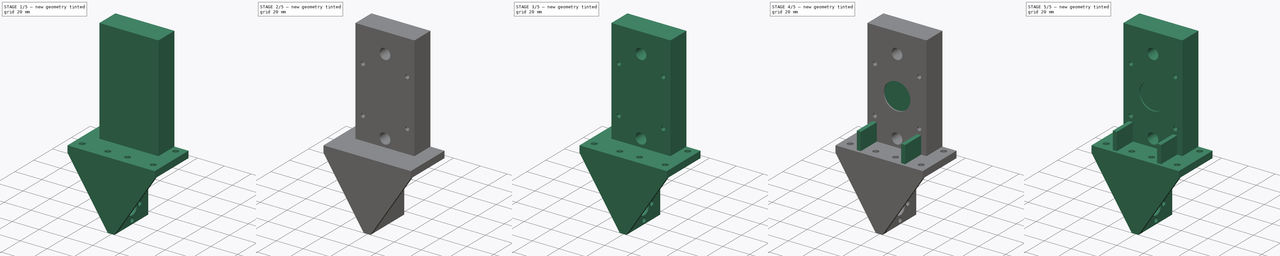
[diagram: build sequence overview — one tinted view per stage of 5, left to right]
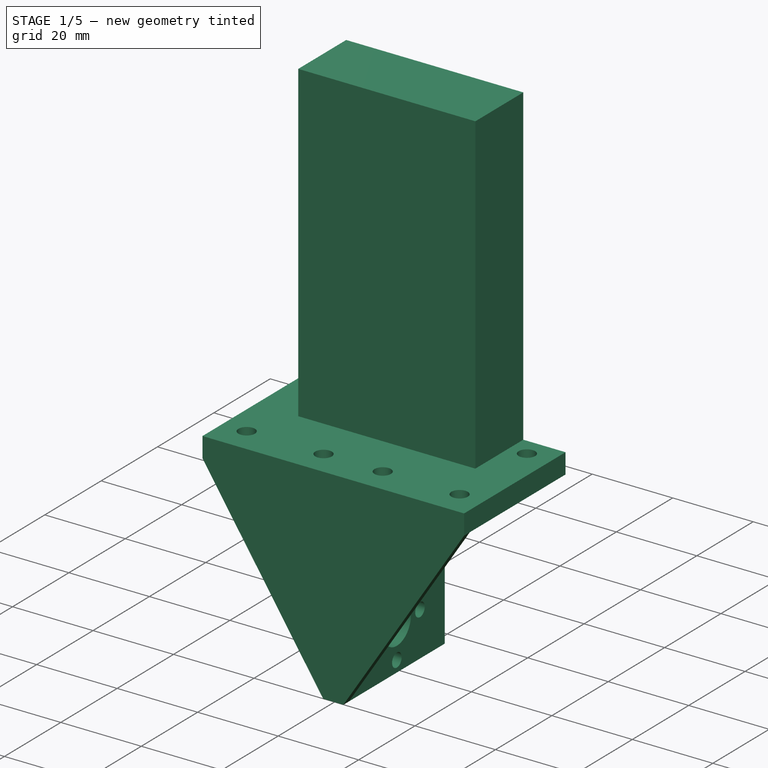
[diagram: stage 1 of 5 — iso view after this stage's code; geometry added in this stage tinted green]
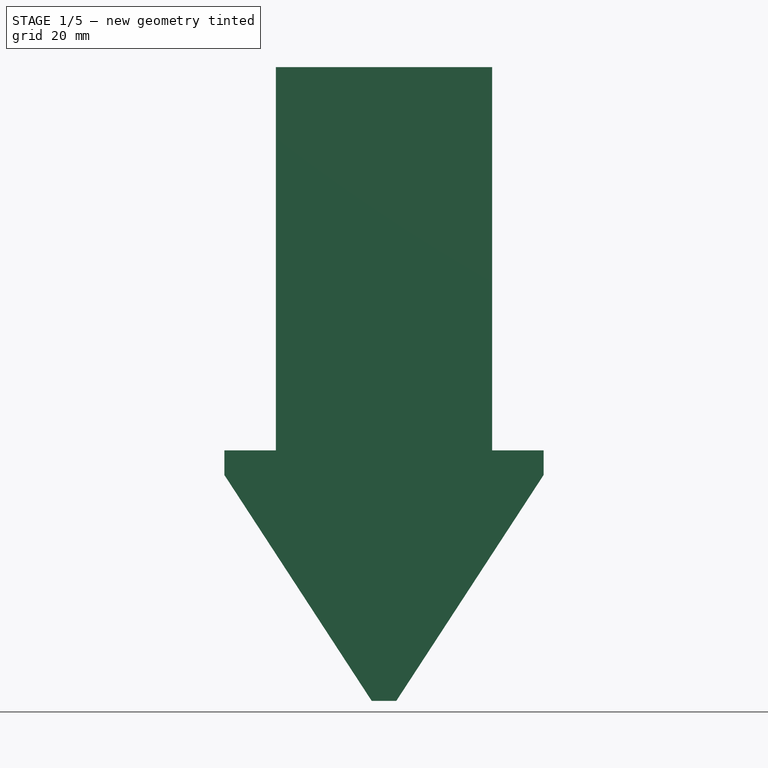
[diagram: stage 1 of 5 — front view after this stage's code; geometry added in this stage tinted green]
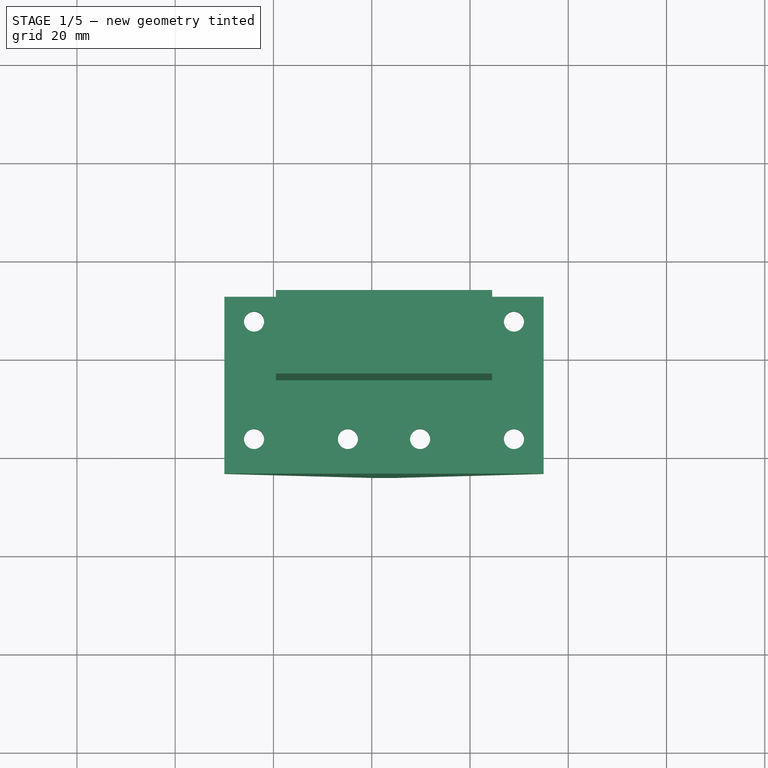
[diagram: stage 1 of 5 — top view after this stage's code; geometry added in this stage tinted green]
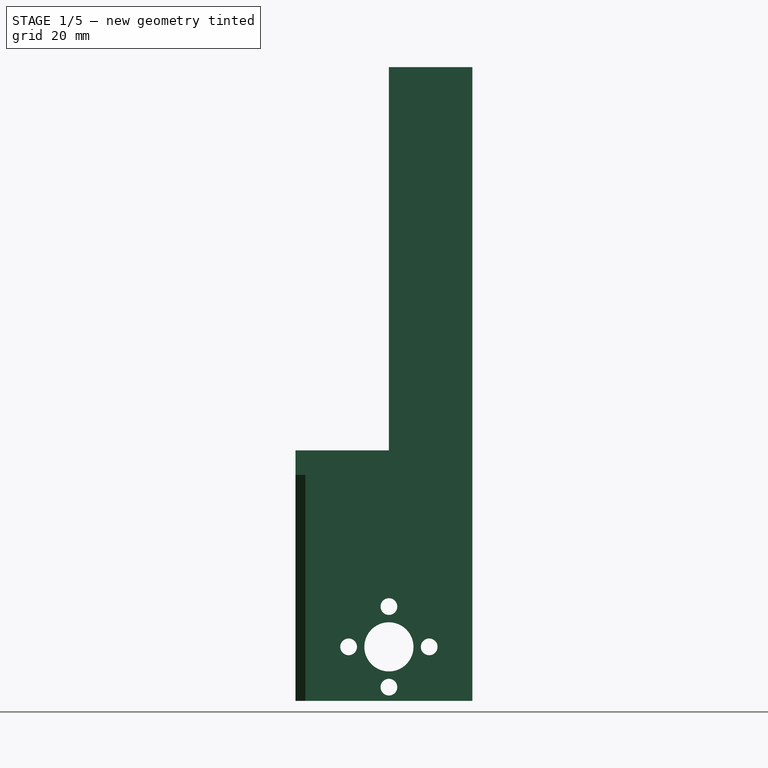
[diagram: stage 1 of 5 — right view after this stage's code; geometry added in this stage tinted green]
FCSTD DOCUMENT  (FreeCAD 0.16R6712 (Git))
Label: sujecion_x2
License: All rights reserved
LicenseURL: http://en.wikipedia.org/wiki/All_rights_reserved
objects: Sketcher::SketchObject×11, PartDesign::Pocket×7, PartDesign::Pad×4, Part::Box×3, Part::MultiFuse×3, Part::Feature×3, PartDesign::Chamfer×1, Part::Cut×1
note: 44 computed .brp shape members not serialized (recipe doc carries the construction recipe); baked Part::Feature solids carry a one-line shape summary decoded from their .brp

FEATURE [Part::Box] Box002  label="Cubo002"
  Height = 78
  Length = 44
  Placement = pos=(-19.5,15,51) rot=(0,0,1;0rad)
  Width = 17
FEATURE [Part::Feature] Pocket006001  label="Pocket007"
  shape: bbox 65 x 34 x 129 mm, 36 faces (baked)
FEATURE [Sketcher::SketchObject] Sketch009
  ExternalGeometry = -> [Pocket006001]
  Placement = pos=(0,-2,0) rot=(1,0,0;1.5708rad)
  Support = -> Pocket006001 [Face36]
  sketch-geometry (6):
    g0: LineSegment StartX=-30 StartY=51 StartZ=0 EndX=35 EndY=51 EndZ=0
    g1: LineSegment StartX=35 StartY=51 StartZ=0 EndX=35 EndY=46 EndZ=0
    g2: LineSegment StartX=35 StartY=46 StartZ=0 EndX=5 EndY=0 EndZ=0
    g3: LineSegment StartX=5 StartY=0 StartZ=0 EndX=0 EndY=0 EndZ=0
    g4: LineSegment StartX=0 StartY=0 StartZ=0 EndX=-30 EndY=46 EndZ=0
    g5: LineSegment StartX=-30 StartY=46 StartZ=0 EndX=-30 EndY=51 EndZ=0
  constraints (12):
    c: Coincident(g-3,g0)
    c: Coincident(g0,g-4)
    c: Coincident(g0,g1)
    c: Coincident(g1,g-4)
    c: Coincident(g1,g2)
    c: Coincident(g2,g-5)
    c: Coincident(g2,g3)
    c: Coincident(g3,g-1)
    c: Coincident(g3,g4)
    c: Coincident(g4,g-3)
    c: Coincident(g4,g5)
    c: Coincident(g5,g0)
FEATURE [PartDesign::Pad] Pad001002
  Length = 2
  Length2 = 100
  Sketch = -> Sketch009
  Type = 0
FEATURE [Sketcher::SketchObject] Sketch010
  Placement = pos=(0,0,0) rot=(-1,0,0;4.71239rad)
  sketch-geometry (4):
    g0: LineSegment StartX=-22.8727 StartY=131.236 StartZ=0 EndX=30.617 EndY=131.236 EndZ=0
    g1: LineSegment StartX=30.617 StartY=131.236 StartZ=0 EndX=30.617 EndY=120.688 EndZ=0
    g2: LineSegment StartX=30.617 StartY=120.688 StartZ=0 EndX=-22.8727 EndY=120.688 EndZ=0
    g3: LineSegment StartX=-22.8727 StartY=120.688 StartZ=0 EndX=-22.8727 EndY=131.236 EndZ=0
  constraints (8):
    c: Coincident(g0,g1)
    c: Coincident(g1,g2)
    c: Coincident(g2,g3)
    c: Coincident(g3,g0)
    c: Horizontal(g0)
    c: Horizontal(g2)
    c: Vertical(g1)
    c: Vertical(g3)
FEATURE [PartDesign::Pad] Pad001003
  Length = 40
  Length2 = 100
  Placement = pos=(0,0,0) rot=(-1,0,0;4.71239rad)
  Reversed = true
  Sketch = -> Sketch010
  Type = 0
FEATURE [Part::Cut] Cut
  Base = -> Pad001002
  Tool = -> Pad001003
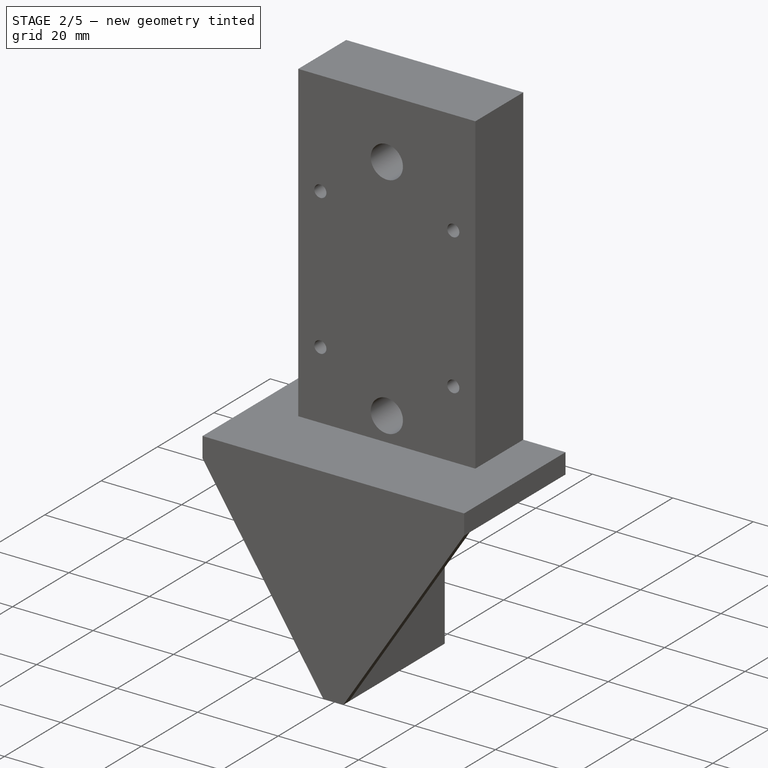
[diagram: stage 2 of 5 — iso view after this stage's code; geometry added in this stage tinted green]
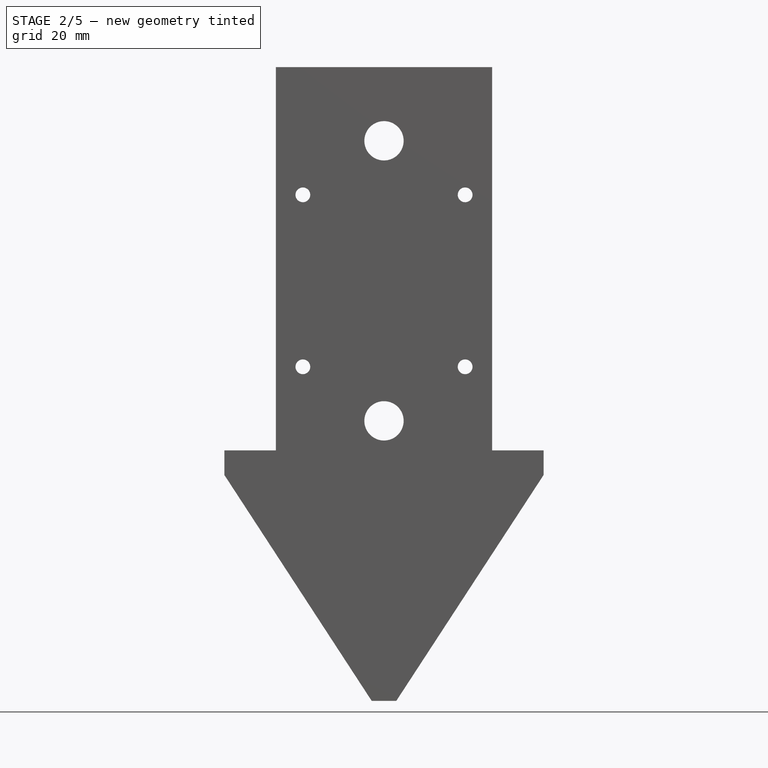
[diagram: stage 2 of 5 — front view after this stage's code; geometry added in this stage tinted green]
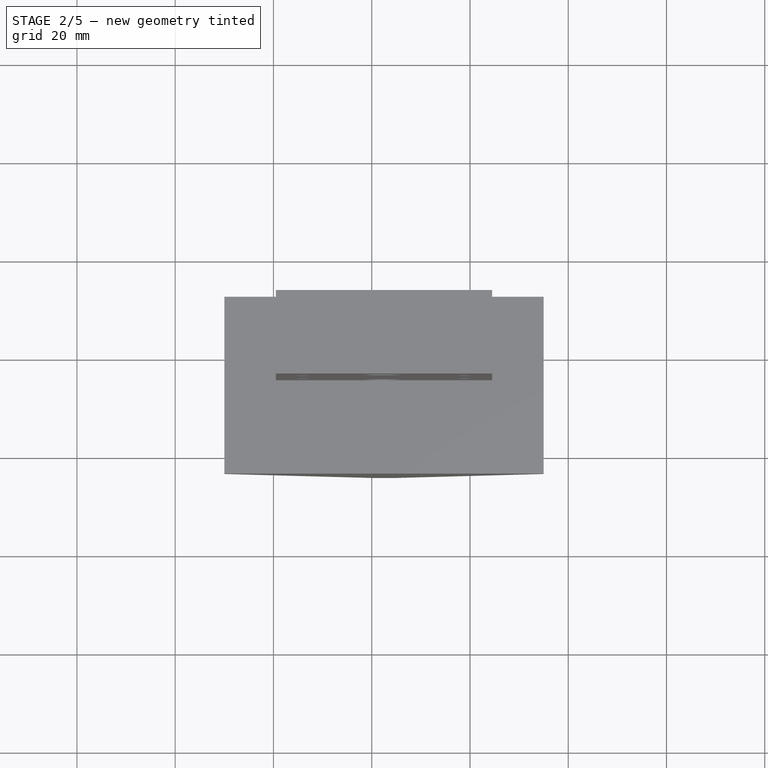
[diagram: stage 2 of 5 — top view after this stage's code; geometry added in this stage tinted green]
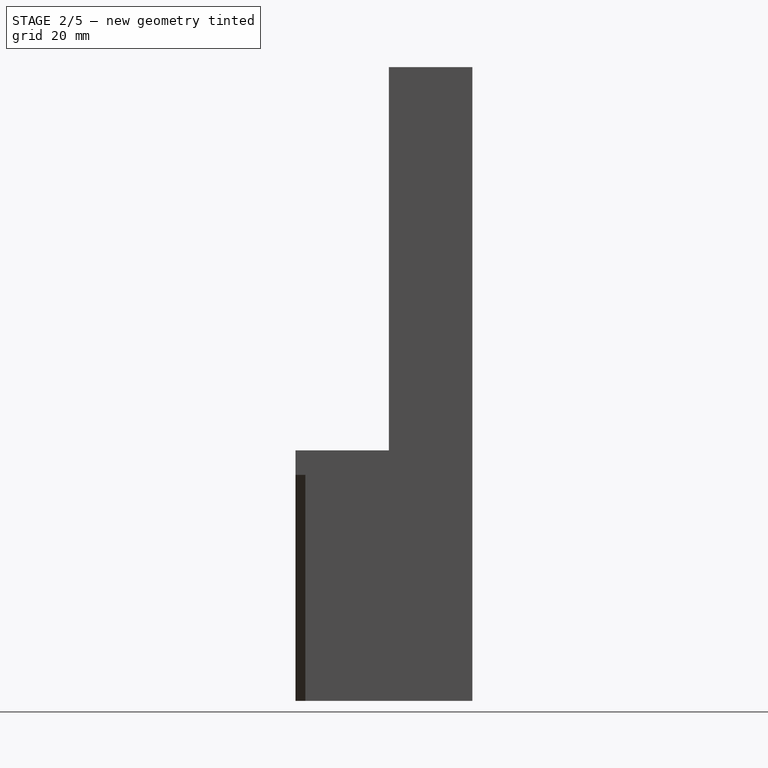
[diagram: stage 2 of 5 — right view after this stage's code; geometry added in this stage tinted green]
FEATURE [Part::Box] Box  label="Cubo"
  Height = 46
  Length = 5
  Placement = pos=(0,-2,0) rot=(0,0,1;0rad)
  Width = 34
FEATURE [Part::Box] Box001  label="Cubo001"
  Height = 5
  Length = 65
  Placement = pos=(-30,-2,46) rot=(0,0,1;0rad)
  Width = 34
FEATURE [Part::MultiFuse] Fusion
  Shapes = -> [Box,Box001]
FEATURE [Sketcher::SketchObject] Sketch003
  ExternalGeometry = -> [Box002]
  Placement = pos=(-19.5,15,51) rot=(1,0,0;1.5708rad)
  Support = -> Box002 [Face3]
  sketch-geometry (8):
    g0: Circle CenterX=22 CenterY=6 CenterZ=0 NormalX=0 NormalY=0 NormalZ=1 Radius=4
    g1: Circle CenterX=22 CenterY=63 CenterZ=0 NormalX=0 NormalY=0 NormalZ=1 Radius=4
    g2: Circle CenterX=5.48502 CenterY=17 CenterZ=0 NormalX=0 NormalY=0 NormalZ=1 Radius=1.5
    g3: LineSegment [constr] StartX=22 StartY=87.5009 StartZ=0 EndX=22 EndY=-10.6245 EndZ=0
    g4: Circle CenterX=38.515 CenterY=17 CenterZ=0 NormalX=0 NormalY=0 NormalZ=1 Radius=1.5
    g5: LineSegment [constr] StartX=-18.5189 StartY=34.5 StartZ=0 EndX=66.8827 EndY=34.5 EndZ=0
    g6: Circle CenterX=5.48502 CenterY=52 CenterZ=0 NormalX=0 NormalY=0 NormalZ=1 Radius=1.5
    g7: Circle CenterX=38.515 CenterY=52 CenterZ=0 NormalX=0 NormalY=0 NormalZ=1 Radius=1.5
  constraints (15):
    c: Radius(g0) = 4
    c: DistanceX(g-1,g0) = 22
    c: DistanceY(g-1,g0) = 6
    c: Radius(g1) = 4
    c: DistanceY(g0,g1) = 57
    c: DistanceX(g-1,g1) = 22
    c: DistanceY(g0,g2) = 11
    c: Vertical(g3)
    c: PointOnObject(g1,g3)
    c: Radius(g2) = 1.5
    c: Radius(g4) = 1.5
    c: Horizontal(g5)
    c: DistanceY(g5,g1) = 28.5
    c: Radius(g6) = 1.5
    c: Radius(g7) = 1.5
FEATURE [PartDesign::Pocket] Pocket003
  Length = 5
  Placement = pos=(-19.5,15,51) rot=(0,0,1;0rad)
  Sketch = -> Sketch003
  Type = 1
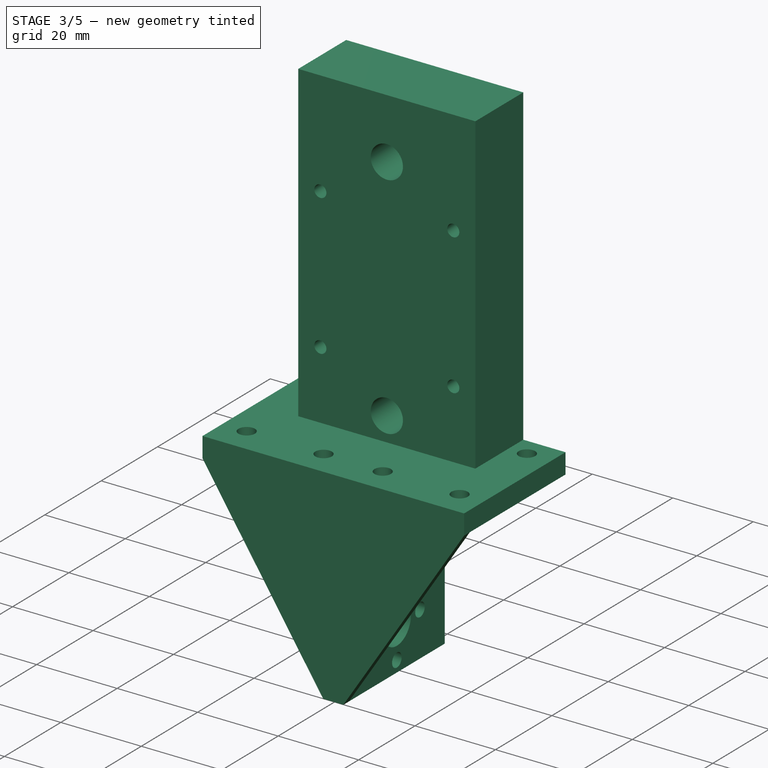
[diagram: stage 3 of 5 — iso view after this stage's code; geometry added in this stage tinted green]
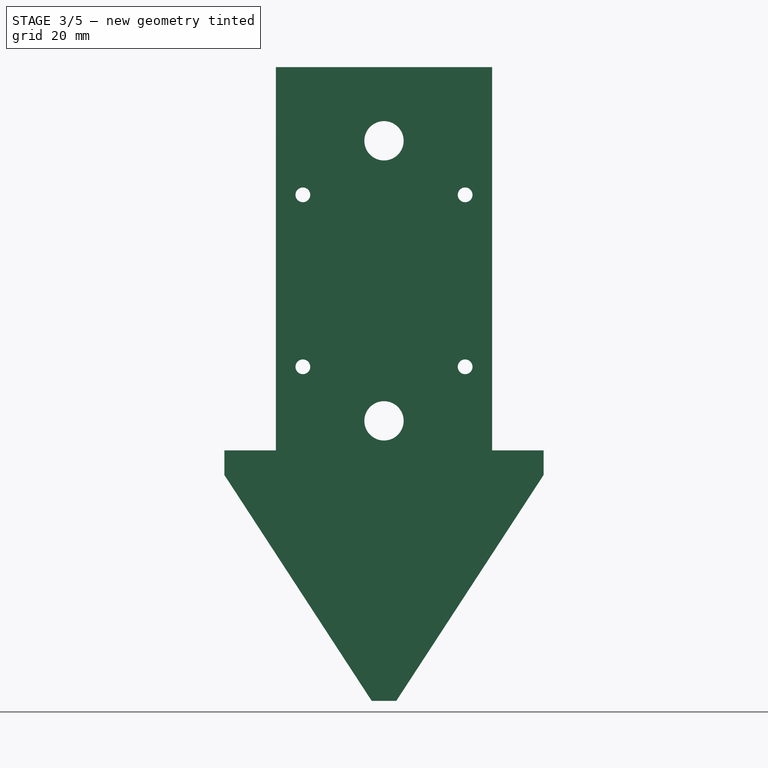
[diagram: stage 3 of 5 — front view after this stage's code; geometry added in this stage tinted green]
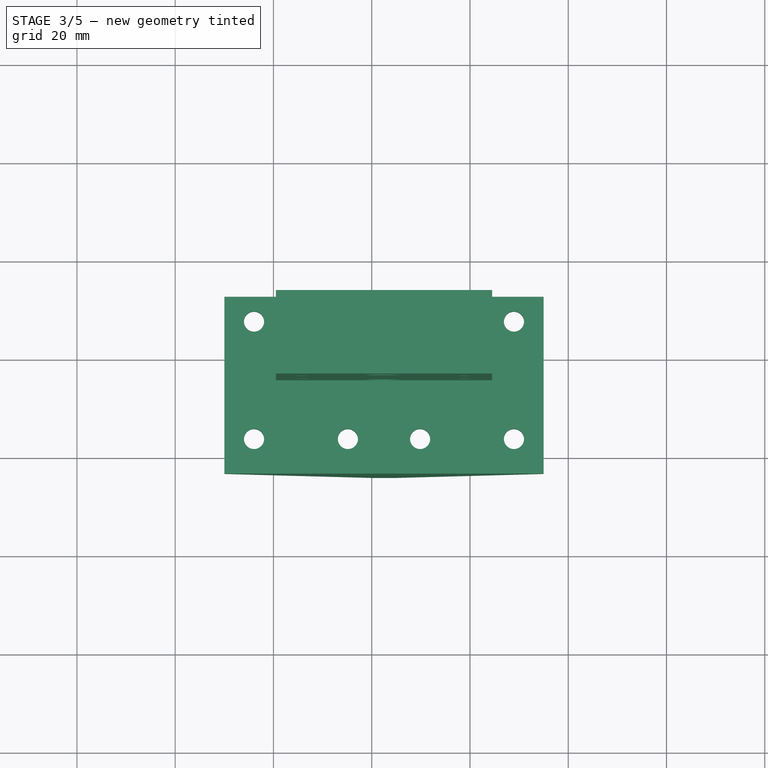
[diagram: stage 3 of 5 — top view after this stage's code; geometry added in this stage tinted green]
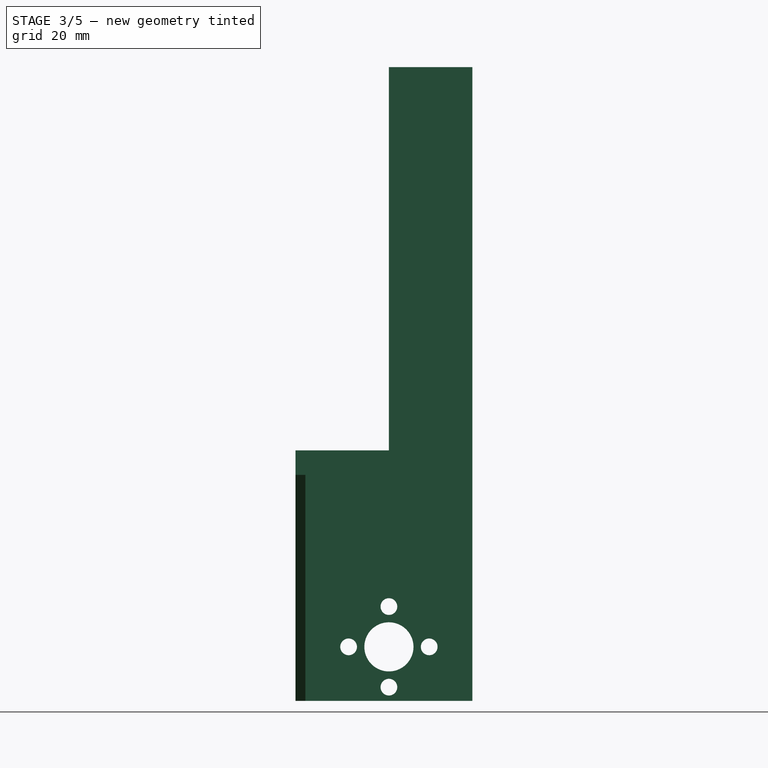
[diagram: stage 3 of 5 — right view after this stage's code; geometry added in this stage tinted green]
FEATURE [Sketcher::SketchObject] Sketch
  ExternalGeometry = -> [Fusion]
  Placement = pos=(0,0,51) rot=(0,0,1;0rad)
  Support = -> Fusion [Face11]
  sketch-geometry (11):
    g0: Circle CenterX=-36.05 CenterY=-7.05 CenterZ=0 NormalX=0 NormalY=0 NormalZ=1 Radius=2.05
    g1: Circle CenterX=28.95 CenterY=3.05 CenterZ=0 NormalX=0 NormalY=0 NormalZ=1 Radius=2.05
    g2: Circle CenterX=-55.15 CenterY=-7.05 CenterZ=0 NormalX=0 NormalY=0 NormalZ=1 Radius=2.05
    g3: Circle CenterX=9.85 CenterY=3.05 CenterZ=0 NormalX=0 NormalY=0 NormalZ=1 Radius=2.05
    g4: LineSegment [constr] StartX=2.5 StartY=34.6682 StartZ=0 EndX=2.5 EndY=-4.32857 EndZ=0
    g5: Circle CenterX=-4.85 CenterY=3.05 CenterZ=0 NormalX=0 NormalY=0 NormalZ=1 Radius=2.05
    g6: Circle CenterX=-23.95 CenterY=3.05 CenterZ=0 NormalX=0 NormalY=0 NormalZ=1 Radius=2.05
    g7: Circle CenterX=-23.95 CenterY=26.95 CenterZ=0 NormalX=0 NormalY=0 NormalZ=1 Radius=2.05
    g8: Circle CenterX=-4.85 CenterY=26.95 CenterZ=0 NormalX=0 NormalY=0 NormalZ=1 Radius=2.05
    g9: Circle CenterX=9.85 CenterY=26.95 CenterZ=0 NormalX=0 NormalY=0 NormalZ=1 Radius=2.05
    g10: Circle CenterX=28.95 CenterY=26.95 CenterZ=0 NormalX=0 NormalY=0 NormalZ=1 Radius=2.05
  constraints (17):
    c: Equal(g2,g0)
    c: Equal(g0,g1)
    c: Equal(g1,g3)
    c: DistanceX(g0,g-4) = 6.05
    c: DistanceX(g1,g-3) = 6.05
    c: DistanceY(g0,g-4) = 5.05
    c: DistanceY(g-3,g1) = 5.05
    c: DistanceY(g-3,g3) = 5.05
    c: DistanceX(g3,g1) = 19.1
    c: DistanceX(g2,g0) = 19.1
    c: DistanceY(g2,g-4) = 5.05
    c: Vertical(g4)
    c: DistanceX(g-1,g4) = 2.5
    c: Equal(g8,g7)
    c: Equal(g7,g6)
    c: Equal(g6,g5)
    c: Equal(g9,g10)
FEATURE [PartDesign::Pocket] Pocket
  Length = 5
  Sketch = -> Sketch
  Type = 0
FEATURE [Sketcher::SketchObject] Sketch001
  Placement = pos=(5,0,0) rot=(0.57735,0.57735,0.57735;2.0944rad)
  Support = -> Pocket [Face4]
  sketch-geometry (8):
    g0: Circle [constr] CenterX=15 CenterY=11 CenterZ=0 NormalX=0 NormalY=0 NormalZ=1 Radius=11
    g1: Circle CenterX=15 CenterY=11 CenterZ=0 NormalX=0 NormalY=0 NormalZ=1 Radius=5
    g2: LineSegment [constr] StartX=15 StartY=27.86 StartZ=0 EndX=15 EndY=-6.05381 EndZ=0
    g3: LineSegment [constr] StartX=39.7618 StartY=11 StartZ=0 EndX=-6.3563 EndY=11 EndZ=0
    g4: Circle CenterX=15 CenterY=19.2 CenterZ=0 NormalX=0 NormalY=0 NormalZ=1 Radius=1.7
    g5: Circle CenterX=23.2 CenterY=11 CenterZ=0 NormalX=0 NormalY=0 NormalZ=1 Radius=1.7
    g6: Circle CenterX=15 CenterY=2.8 CenterZ=0 NormalX=0 NormalY=0 NormalZ=1 Radius=1.7
    g7: Circle CenterX=6.8 CenterY=11 CenterZ=0 NormalX=0 NormalY=0 NormalZ=1 Radius=1.7
  constraints (21):
    c: Radius(g0) = 11
    c: Tangent(g0,g-1)
    c: DistanceX(g-1,g0) = 15
    c: Coincident(g1,g0)
    c: Radius(g1) = 5
    c: Vertical(g2)
    c: Horizontal(g3)
    c: PointOnObject(g0,g2)
    c: PointOnObject(g0,g3)
    c: PointOnObject(g4,g2)
    c: PointOnObject(g5,g3)
    c: PointOnObject(g6,g2)
    c: PointOnObject(g7,g3)
    c: Equal(g7,g4)
    c: Equal(g4,g5)
    c: Equal(g5,g6)
    c: Radius(g5) = 1.7
    c: DistanceY(g6,g4) = 16.4
    c: DistanceY(g0,g4) = 8.2
    c: DistanceX(g7,g5) = 16.4
    c: DistanceX(g7,g0) = 8.2
FEATURE [PartDesign::Pocket] Pocket001
  Length = 5
  Sketch = -> Sketch001
  Type = 0
FEATURE [Part::MultiFuse] Fusion001003
  Shapes = -> [Pocket003,Pocket001]
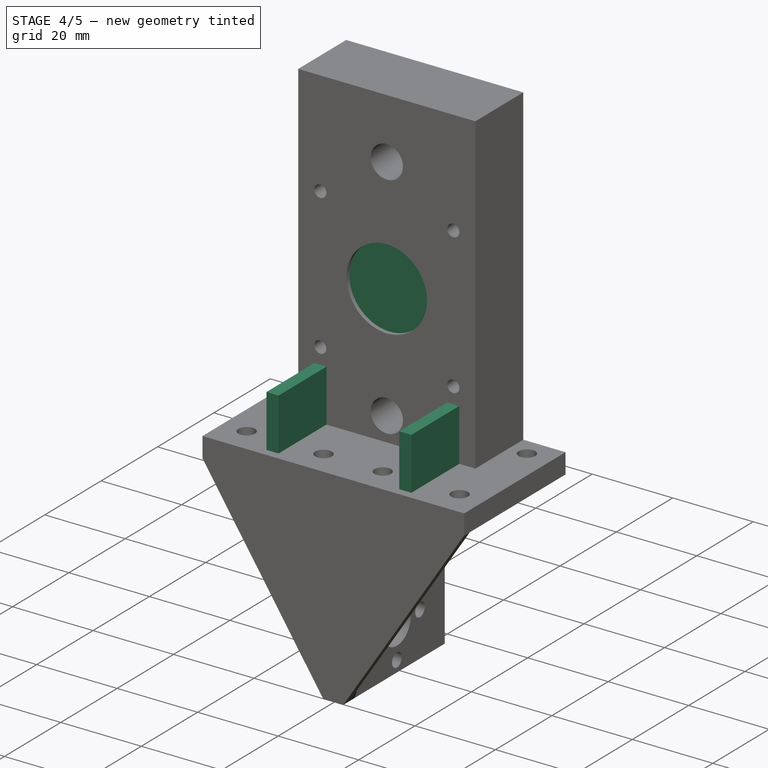
[diagram: stage 4 of 5 — iso view after this stage's code; geometry added in this stage tinted green]
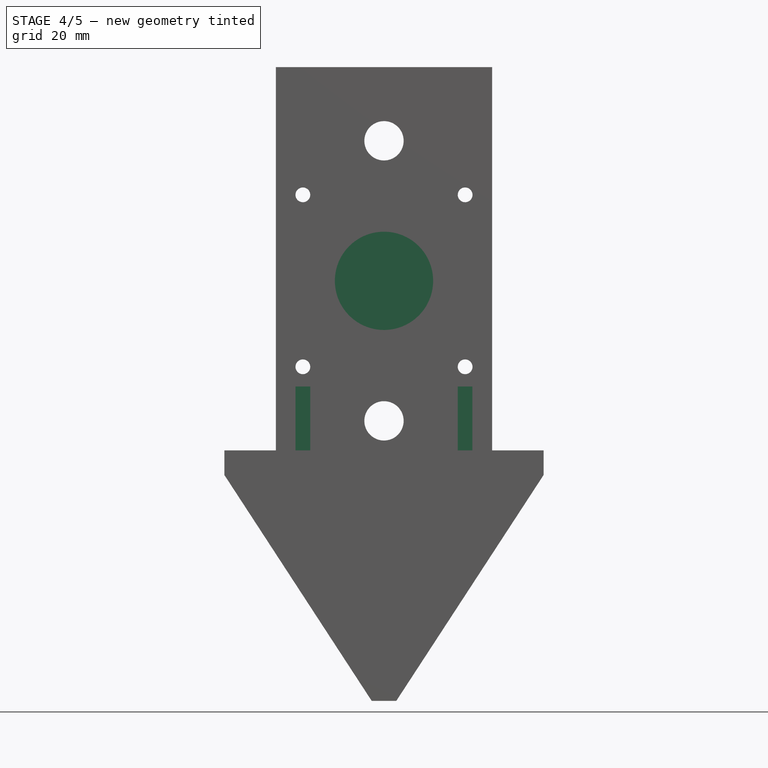
[diagram: stage 4 of 5 — front view after this stage's code; geometry added in this stage tinted green]
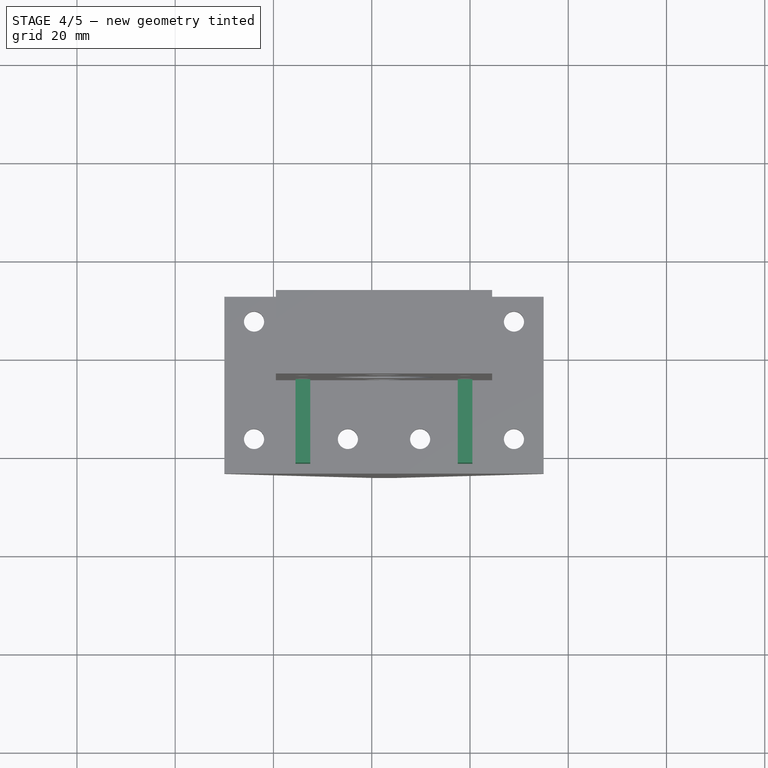
[diagram: stage 4 of 5 — top view after this stage's code; geometry added in this stage tinted green]
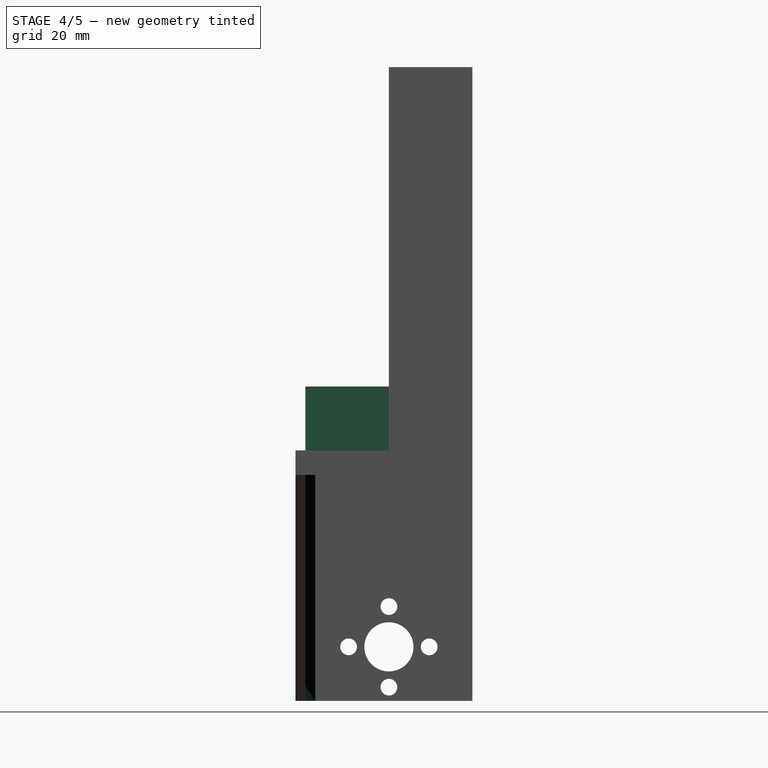
[diagram: stage 4 of 5 — right view after this stage's code; geometry added in this stage tinted green]
FEATURE [Sketcher::SketchObject] Sketch004
  ExternalGeometry = -> [Pocket003]
  Placement = pos=(-19.5,15,51) rot=(1,0,0;1.5708rad)
  Support = -> Pocket003 [Face2]
  sketch-geometry (4):
    g0: LineSegment StartX=0 StartY=56 StartZ=0 EndX=44 EndY=56 EndZ=0
    g1: LineSegment StartX=44 StartY=56 StartZ=0 EndX=44 EndY=13 EndZ=0
    g2: LineSegment StartX=44 StartY=13 StartZ=0 EndX=0 EndY=13 EndZ=0
    g3: LineSegment StartX=0 StartY=13 StartZ=0 EndX=0 EndY=56 EndZ=0
  constraints (12):
    c: Coincident(g0,g1)
    c: Coincident(g1,g2)
    c: Coincident(g2,g3)
    c: Coincident(g3,g0)
    c: Horizontal(g0)
    c: Horizontal(g2)
    c: Vertical(g1)
    c: Vertical(g3)
    c: DistanceY(g1,g1) = 43
    c: DistanceX(g0,g0) = 44
    c: PointOnObject(g0,g-3)
    c: DistanceY(g2,g-5) = 4
FEATURE [PartDesign::Pocket] Pocket004
  Length = 1
  Placement = pos=(-19.5,15,51) rot=(0,0,1;0rad)
  Sketch = -> Sketch004
  Type = 0
FEATURE [Part::Feature] Pad001001  label="Pad002"
  shape: bbox 65 x 36 x 129 mm, 52 faces (baked)
FEATURE [PartDesign::Chamfer] Chamfer
  Base = -> Pad001001 [Edge82,Edge80]
  Size = 2
FEATURE [Sketcher::SketchObject] Sketch007
  ExternalGeometry = -> [Chamfer]
  Placement = pos=(0,16,0) rot=(1,0,0;1.5708rad)
  Support = -> Chamfer [Face51]
  sketch-geometry (3):
    g0: LineSegment [constr] StartX=-19.5 StartY=107 StartZ=0 EndX=2.55977 EndY=85.5584 EndZ=0
    g1: LineSegment [constr] StartX=24.5 StartY=107 StartZ=0 EndX=-19.5 EndY=64 EndZ=0
    g2: Circle CenterX=2.55977 CenterY=85.5584 CenterZ=0 NormalX=0 NormalY=0 NormalZ=1 Radius=17
  constraints (6):
    c: Coincident(g0,g-3)
    c: Coincident(g1,g-3)
    c: Coincident(g1,g-4)
    c: PointOnObject(g0,g1)
    c: Coincident(g2,g0)
    c: Radius(g2) = 17
FEATURE [PartDesign::Pocket] Pocket005
  Length = 5
  Sketch = -> Sketch007
  Type = 1
FEATURE [Sketcher::SketchObject] Sketch008
  ExternalGeometry = -> [Fusion001003]
  Placement = pos=(0,32,0) rot=(0,0.707107,0.707107;3.14159rad)
  Support = -> Fusion001003 [Face3]
  sketch-geometry (3):
    g0: LineSegment [constr] StartX=-19.015 StartY=103 StartZ=0 EndX=14.015 EndY=68 EndZ=0
    g1: LineSegment [constr] StartX=-19.015 StartY=68 StartZ=0 EndX=-2.50001 EndY=85.5 EndZ=0
    g2: Circle CenterX=-2.50001 CenterY=85.5 CenterZ=0 NormalX=0 NormalY=0 NormalZ=1 Radius=10
  constraints (6):
    c: Coincident(g0,g-3)
    c: Coincident(g0,g-5)
    c: Coincident(g1,g-6)
    c: PointOnObject(g1,g0)
    c: Coincident(g2,g1)
    c: Radius(g2) = 10
FEATURE [PartDesign::Pocket] Pocket006
  Length = 5
  Sketch = -> Sketch008
  Type = 1
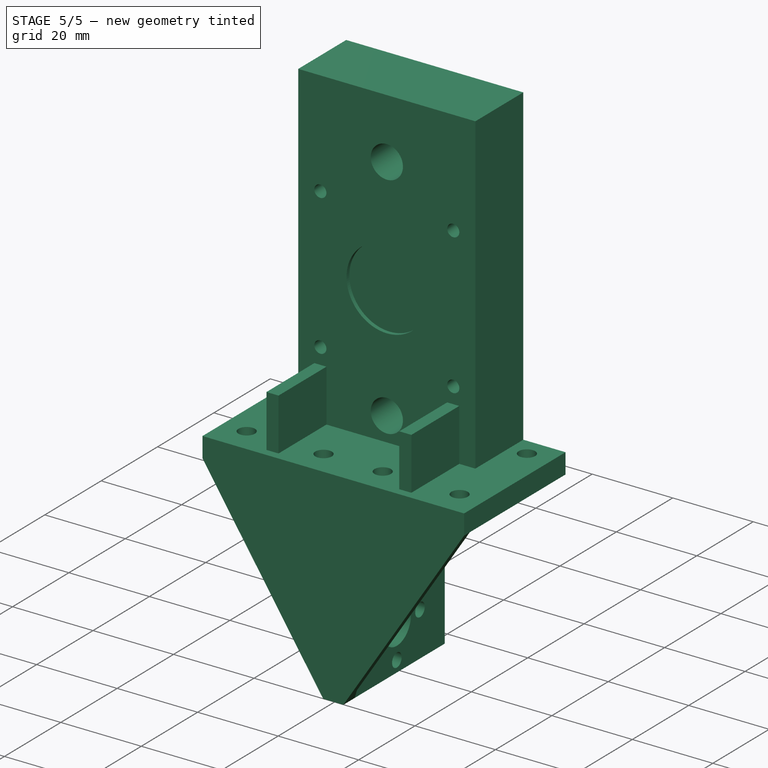
[diagram: stage 5 of 5 — iso view after this stage's code; geometry added in this stage tinted green]
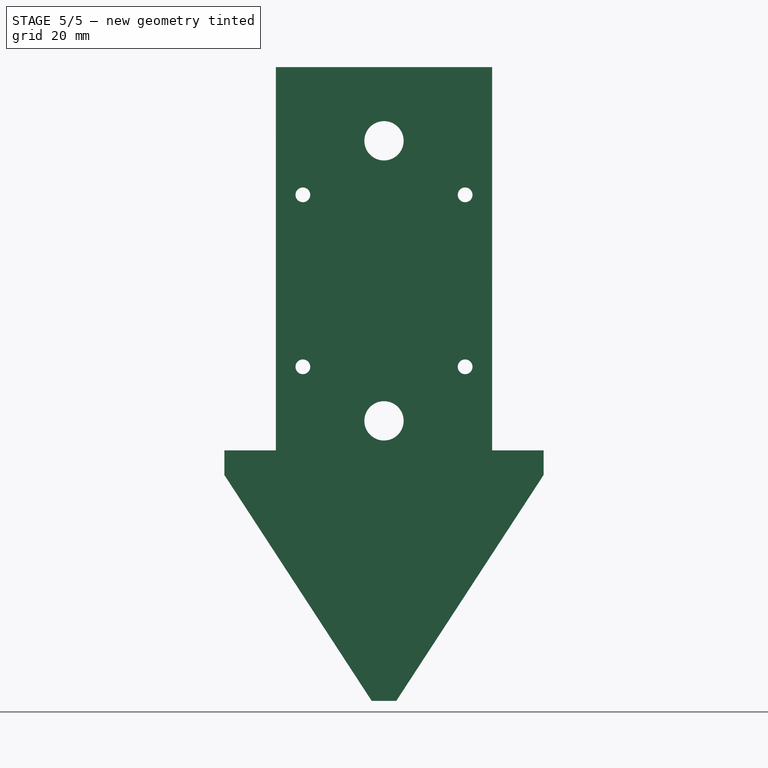
[diagram: stage 5 of 5 — front view after this stage's code; geometry added in this stage tinted green]
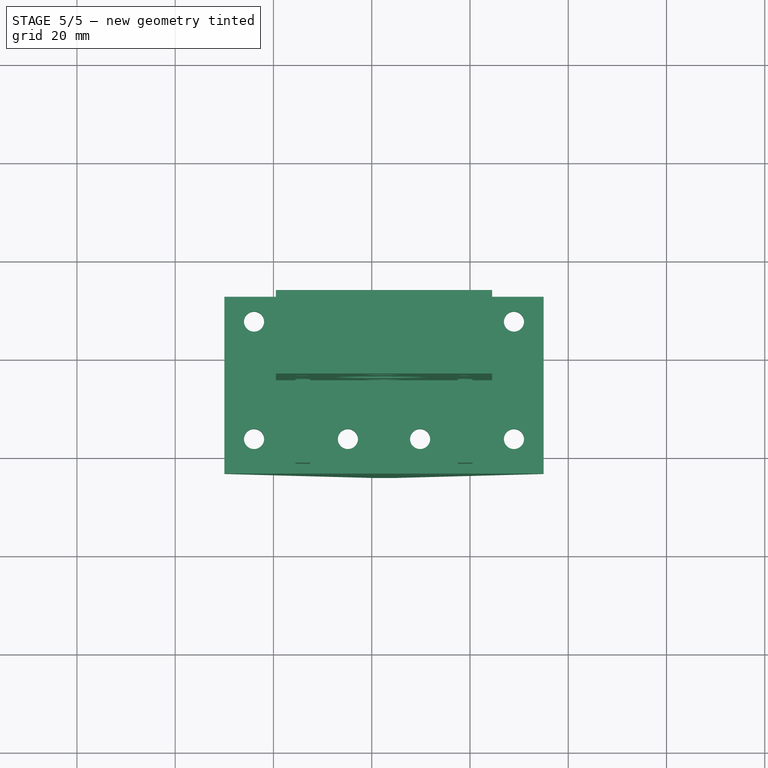
[diagram: stage 5 of 5 — top view after this stage's code; geometry added in this stage tinted green]
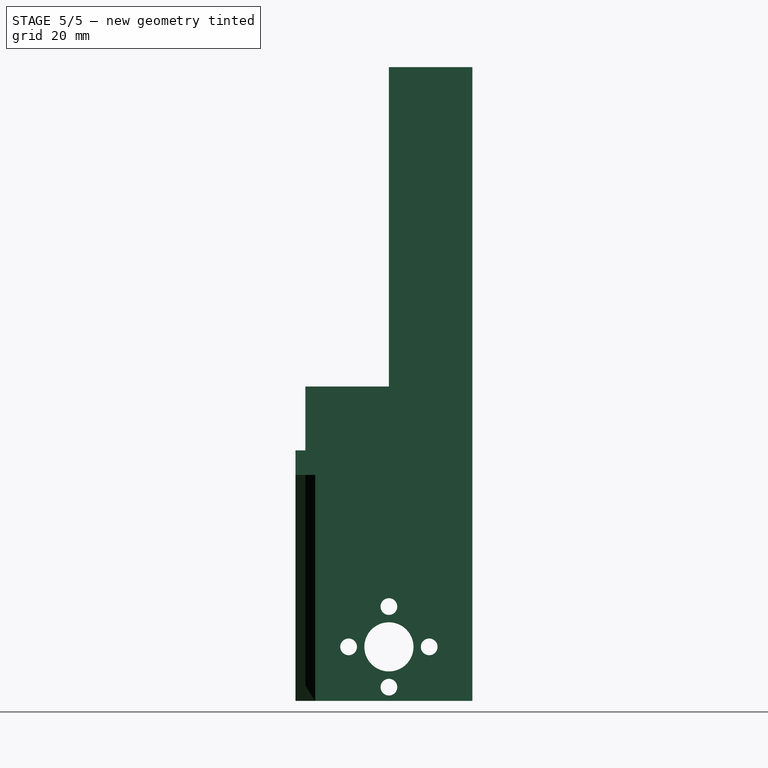
[diagram: stage 5 of 5 — right view after this stage's code; geometry added in this stage tinted green]
FEATURE [Sketcher::SketchObject] Sketch002
  ExternalGeometry = -> [Pocket001]
  Placement = pos=(5,0,0) rot=(0.57735,0.57735,0.57735;2.0944rad)
  Support = -> Pocket001 [Face4]
  sketch-geometry (1):
    g0: Circle CenterX=15 CenterY=34.8 CenterZ=0 NormalX=0 NormalY=0 NormalZ=1 Radius=4.5
  constraints (3):
    c: Radius(g0) = 4.5
    c: DistanceY(g0,g-3) = 11.2
    c: DistanceX(g-3,g0) = 17
FEATURE [PartDesign::Pocket] Pocket002
  Length = 5
  Sketch = -> Sketch002
  Type = 0
FEATURE [Sketcher::SketchObject] Sketch005
  ExternalGeometry = -> [Pocket004]
  Placement = pos=(-19.5,15,51) rot=(1,0,0;1.5708rad)
  Support = -> Pocket004 [Face2]
  sketch-geometry (8):
    g0: LineSegment StartX=37 StartY=13 StartZ=0 EndX=40 EndY=13 EndZ=0
    g1: LineSegment StartX=40 StartY=13 StartZ=0 EndX=40 EndY=0 EndZ=0
    g2: LineSegment StartX=40 StartY=0 StartZ=0 EndX=37 EndY=0 EndZ=0
    g3: LineSegment StartX=37 StartY=0 StartZ=0 EndX=37 EndY=13 EndZ=0
    g4: LineSegment StartX=4 StartY=13 StartZ=0 EndX=7 EndY=13 EndZ=0
    g5: LineSegment StartX=7 StartY=13 StartZ=0 EndX=7 EndY=0 EndZ=0
    g6: LineSegment StartX=7 StartY=0 StartZ=0 EndX=4 EndY=0 EndZ=0
    g7: LineSegment StartX=4 StartY=0 StartZ=0 EndX=4 EndY=13 EndZ=0
  constraints (24):
    c: Coincident(g0,g1)
    c: Coincident(g1,g2)
    c: Coincident(g2,g3)
    c: Coincident(g3,g0)
    c: Horizontal(g0)
    c: Horizontal(g2)
    c: Vertical(g1)
    c: Vertical(g3)
    c: PointOnObject(g0,g-3)
    c: PointOnObject(g1,g-4)
    c: DistanceX(g0,g-3) = 4
    c: DistanceX(g0,g0) = 3
    c: Coincident(g4,g5)
    c: Coincident(g5,g6)
    c: Coincident(g6,g7)
    c: Coincident(g7,g4)
    c: Horizontal(g4)
    c: Horizontal(g6)
    c: Vertical(g5)
    c: Vertical(g7)
    c: PointOnObject(g4,g-3)
    c: PointOnObject(g5,g-4)
    c: DistanceX(g-3,g4) = 4
    c: DistanceX(g4,g4) = 3
FEATURE [PartDesign::Pad] Pad
  Length = 17
  Length2 = 100
  Placement = pos=(-19.5,15,51) rot=(0,0,1;0rad)
  Sketch = -> Sketch005
  Type = 0
FEATURE [Part::Feature] Fusion001001  label="Fusion002"
  shape: bbox 65 x 34 x 129 mm, 48 faces (baked)
FEATURE [Sketcher::SketchObject] Sketch006
  ExternalGeometry = -> [Fusion001001]
  Placement = pos=(0,-2,0) rot=(1,0,0;1.5708rad)
  Support = -> Fusion001001 [Face47]
  sketch-geometry (6):
    g0: LineSegment StartX=-30 StartY=51 StartZ=0 EndX=35 EndY=51 EndZ=0
    g1: LineSegment StartX=35 StartY=51 StartZ=0 EndX=35 EndY=46 EndZ=0
    g2: LineSegment StartX=35 StartY=46 StartZ=0 EndX=5 EndY=0 EndZ=0
    g3: LineSegment StartX=5 StartY=0 StartZ=0 EndX=0 EndY=0 EndZ=0
    g4: LineSegment StartX=0 StartY=0 StartZ=0 EndX=-30 EndY=46 EndZ=0
    g5: LineSegment StartX=-30 StartY=46 StartZ=0 EndX=-30 EndY=51 EndZ=0
  constraints (12):
    c: Coincident(g-3,g0)
    c: Coincident(g0,g-4)
    c: Coincident(g0,g1)
    c: Coincident(g1,g-4)
    c: Coincident(g1,g2)
    c: Coincident(g2,g-5)
    c: Coincident(g2,g3)
    c: Coincident(g3,g-1)
    c: Coincident(g3,g4)
    c: Coincident(g4,g-3)
    c: Coincident(g4,g5)
    c: Coincident(g5,g0)
FEATURE [PartDesign::Pad] Pad001
  Length = 2
  Length2 = 100
  Sketch = -> Sketch006
  Type = 0
FEATURE [Part::MultiFuse] Fusion001002
  Shapes = -> [Pad,Pocket002]
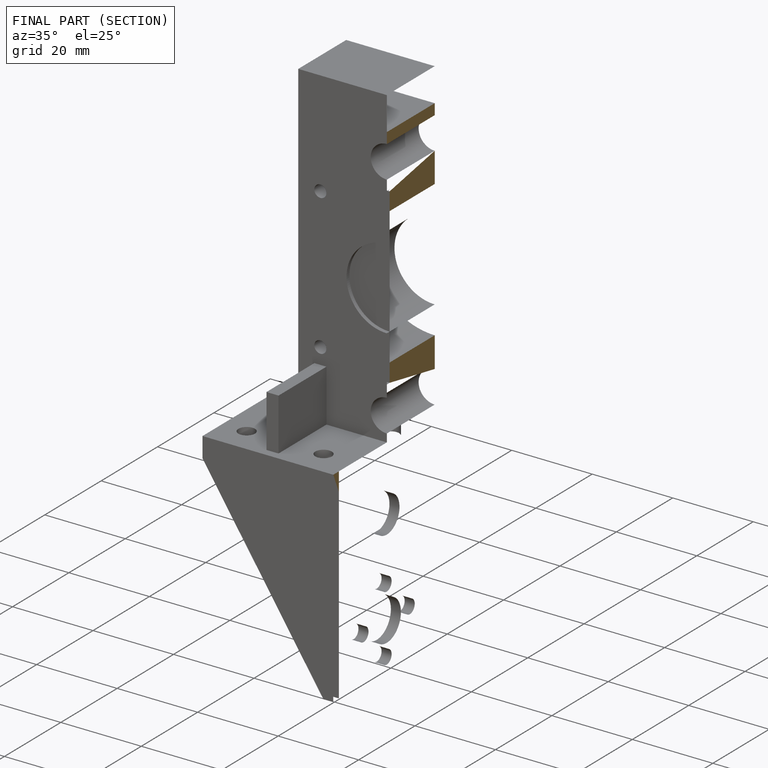
[diagram: finished part — half-section view (interior)]
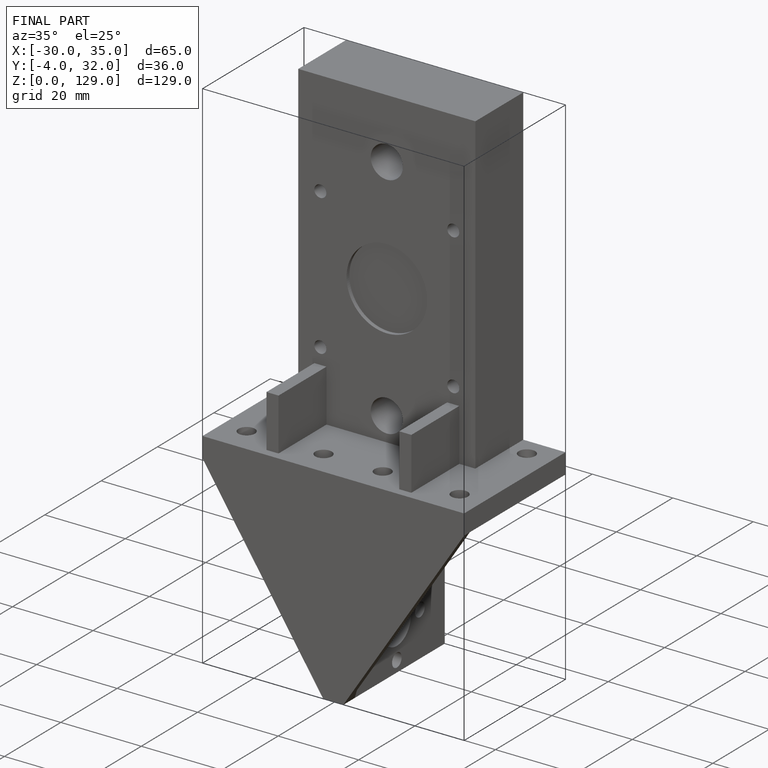
[diagram: finished part — iso view with bounding-box wireframe]
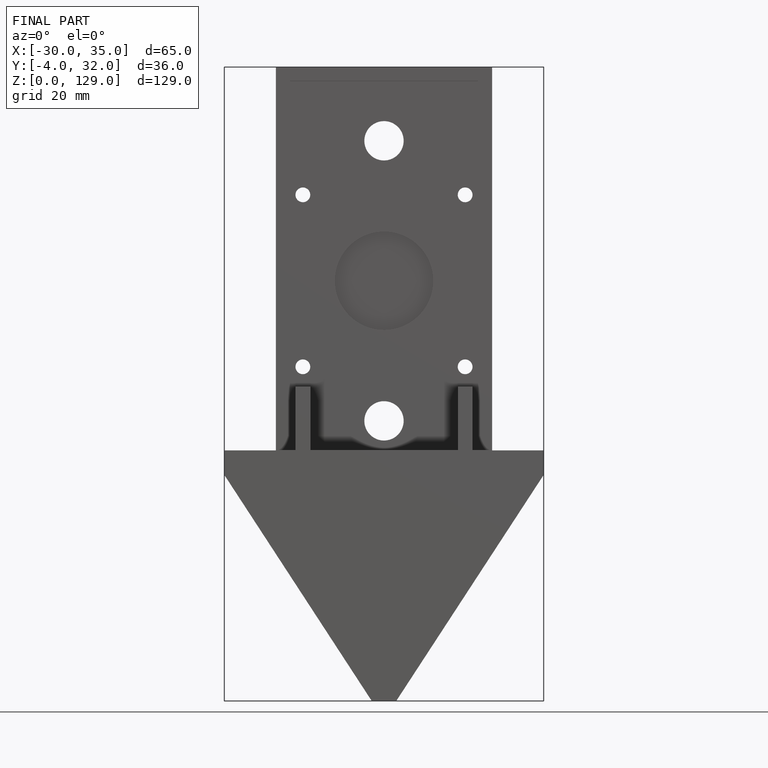
[diagram: finished part — front view with bounding-box wireframe]
